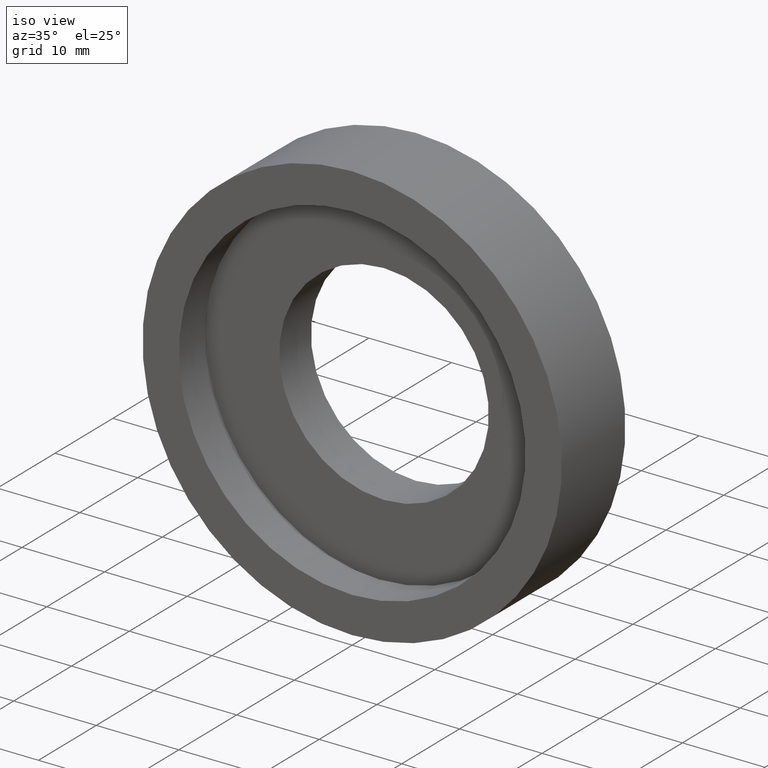
[diagram: clean part render]
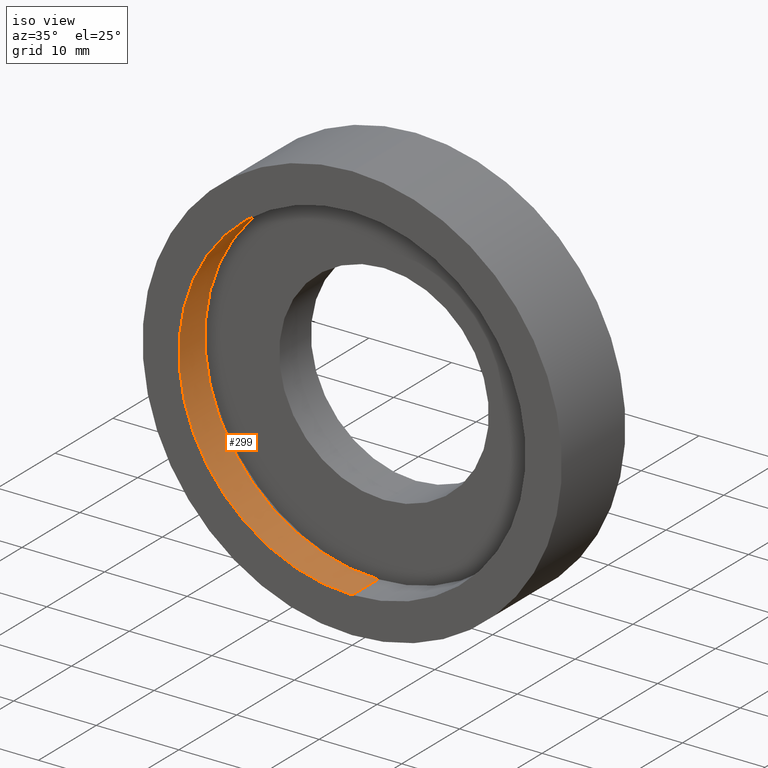
[diagram: same view with one face highlighted and labeled with its STEP entity id]
A machine part, iso view. The second image highlights one B-rep face of the part: STEP entity #299.
In plain terms, the highlighted cylindrical surface (partial cylindrical patch) has radius 21 mm, axis along (-0, -1, -0).
Its self-contained STEP definition (entity closure, byte-faithful):
#4 = DIRECTION ( 'NONE',  ( 0.000000000000000000, 0.000000000000000000, -1.000000000000000000 ) ) ;
#5 = CIRCLE ( 'NONE', #19, 21.00000000000000000 ) ;
#11 = DIRECTION ( 'NONE',  ( -0.000000000000000000, -1.000000000000000000, -0.000000000000000000 ) ) ;
#19 = AXIS2_PLACEMENT_3D ( 'NONE', #139, #292, #4 ) ;
#25 = ORIENTED_EDGE ( 'NONE', *, *, #260, .T. ) ;
#34 = DIRECTION ( 'NONE',  ( 0.000000000000000000, 0.000000000000000000, -1.000000000000000000 ) ) ;
#48 = EDGE_CURVE ( 'NONE', #150, #86, #350, .T. ) ;
#49 = DIRECTION ( 'NONE',  ( -0.000000000000000000, -1.000000000000000000, -0.000000000000000000 ) ) ;
#51 = ORIENTED_EDGE ( 'NONE', *, *, #48, .F. ) ;
#64 = CARTESIAN_POINT ( 'NONE',  ( 0.000000000000000000, 4.500000000000000888, -21.00000000000000000 ) ) ;
#65 = CARTESIAN_POINT ( 'NONE',  ( 0.000000000000000000, 4.500000000000000888, 0.000000000000000000 ) ) ;
#77 = AXIS2_PLACEMENT_3D ( 'NONE', #339, #242, #368 ) ;
#86 = VERTEX_POINT ( 'NONE', #64 ) ;
#89 = VECTOR ( 'NONE', #49, 1000.000000000000000 ) ;
#90 = FACE_OUTER_BOUND ( 'NONE', #179, .T. ) ;
#118 = ORIENTED_EDGE ( 'NONE', *, *, #403, .F. ) ;
#137 = CARTESIAN_POINT ( 'NONE',  ( 0.000000000000000000, 1.200936128785044448E-14, -21.00000000000000000 ) ) ;
#139 = CARTESIAN_POINT ( 'NONE',  ( 0.000000000000000000, 1.200936128785044448E-14, 0.000000000000000000 ) ) ;
#150 = VERTEX_POINT ( 'NONE', #297 ) ;
#165 = EDGE_CURVE ( 'NONE', #150, #259, #353, .T. ) ;
#179 = EDGE_LOOP ( 'NONE', ( #51, #370, #25, #118 ) ) ;
#199 = CARTESIAN_POINT ( 'NONE',  ( 2.571758278209441661E-15, 1.200936128785044448E-14, 21.00000000000000000 ) ) ;
#232 = CARTESIAN_POINT ( 'NONE',  ( 2.571758278209441661E-15, 0.000000000000000000, 21.00000000000000000 ) ) ;
#242 = DIRECTION ( 'NONE',  ( -0.000000000000000000, -1.000000000000000000, -0.000000000000000000 ) ) ;
#259 = VERTEX_POINT ( 'NONE', #199 ) ;
#260 = EDGE_CURVE ( 'NONE', #259, #274, #5, .T. ) ;
#274 = VERTEX_POINT ( 'NONE', #137 ) ;
#292 = DIRECTION ( 'NONE',  ( -0.000000000000000000, -1.000000000000000000, -0.000000000000000000 ) ) ;
#297 = CARTESIAN_POINT ( 'NONE',  ( 2.571758278209441661E-15, 4.500000000000000888, 21.00000000000000000 ) ) ;
#299 = ADVANCED_FACE ( 'NONE', ( #90 ), #301, .F. ) ;
#301 = CYLINDRICAL_SURFACE ( 'NONE', #77, 21.00000000000000000 ) ;
#310 = DIRECTION ( 'NONE',  ( -0.000000000000000000, -1.000000000000000000, -0.000000000000000000 ) ) ;
#329 = CARTESIAN_POINT ( 'NONE',  ( 0.000000000000000000, 0.000000000000000000, -21.00000000000000000 ) ) ;
#332 = LINE ( 'NONE', #329, #89 ) ;
#336 = AXIS2_PLACEMENT_3D ( 'NONE', #65, #310, #34 ) ;
#339 = CARTESIAN_POINT ( 'NONE',  ( 0.000000000000000000, 0.000000000000000000, 0.000000000000000000 ) ) ;
#350 = CIRCLE ( 'NONE', #336, 21.00000000000000000 ) ;
#353 = LINE ( 'NONE', #232, #388 ) ;
#368 = DIRECTION ( 'NONE',  ( 0.000000000000000000, 0.000000000000000000, -1.000000000000000000 ) ) ;
#370 = ORIENTED_EDGE ( 'NONE', *, *, #165, .T. ) ;
#388 = VECTOR ( 'NONE', #11, 1000.000000000000000 ) ;
#403 = EDGE_CURVE ( 'NONE', #86, #274, #332, .T. ) ;